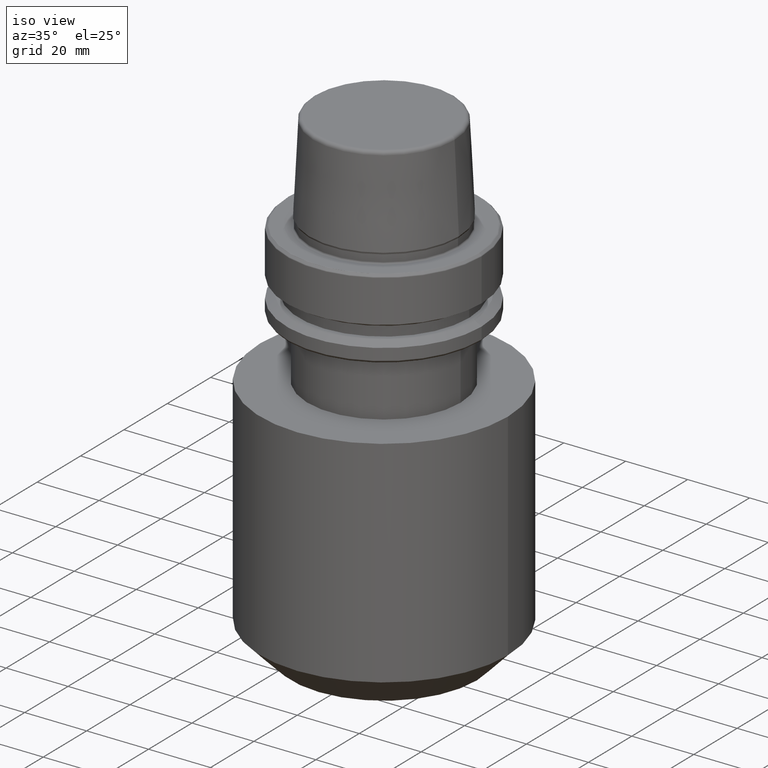
[diagram: clean part render]
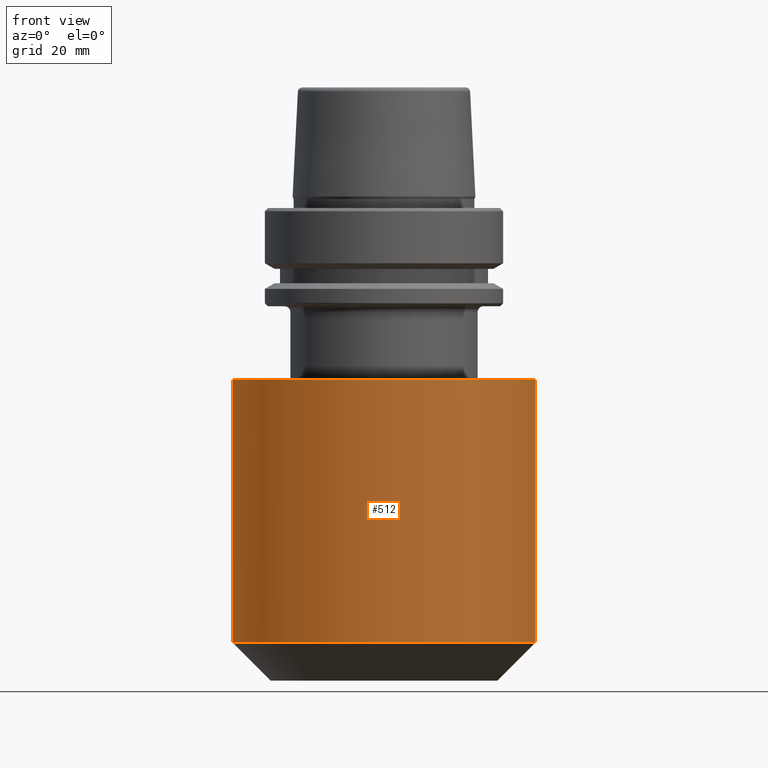
[diagram: tour spotlight — one face highlighted and labeled with its STEP entity id]
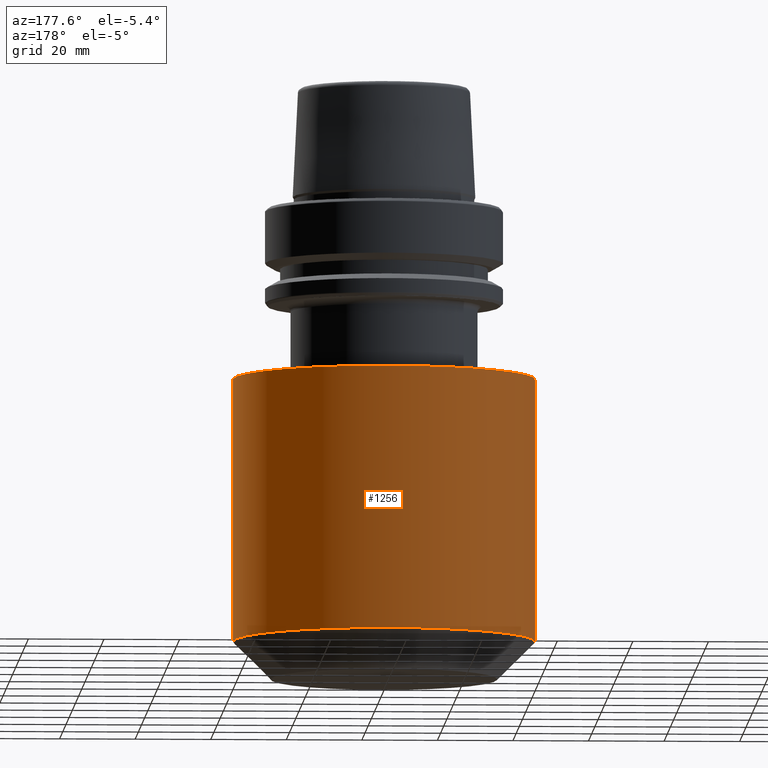
[diagram: tour spotlight — one face highlighted and labeled with its STEP entity id]
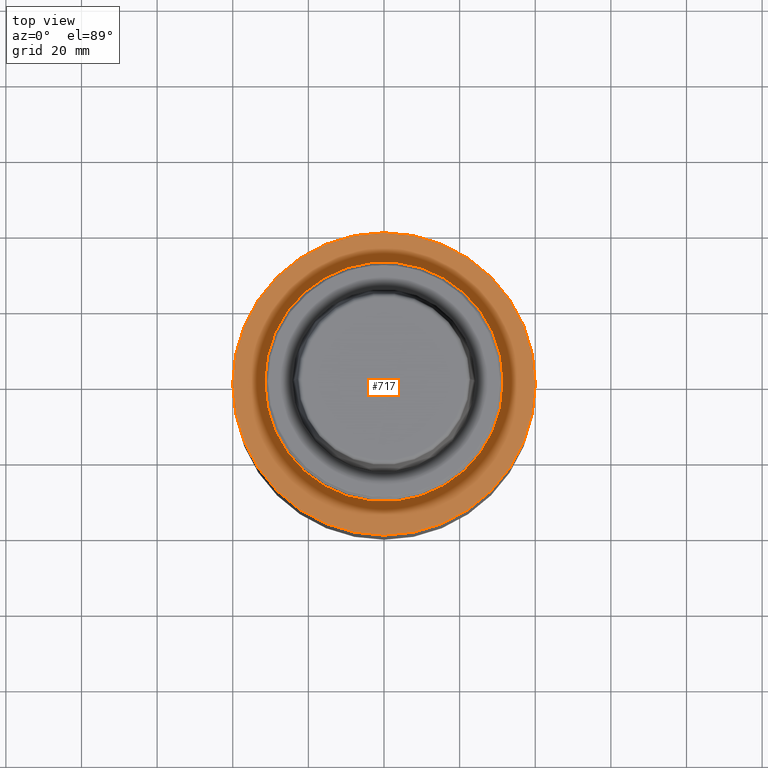
[diagram: tour spotlight — one face highlighted and labeled with its STEP entity id]
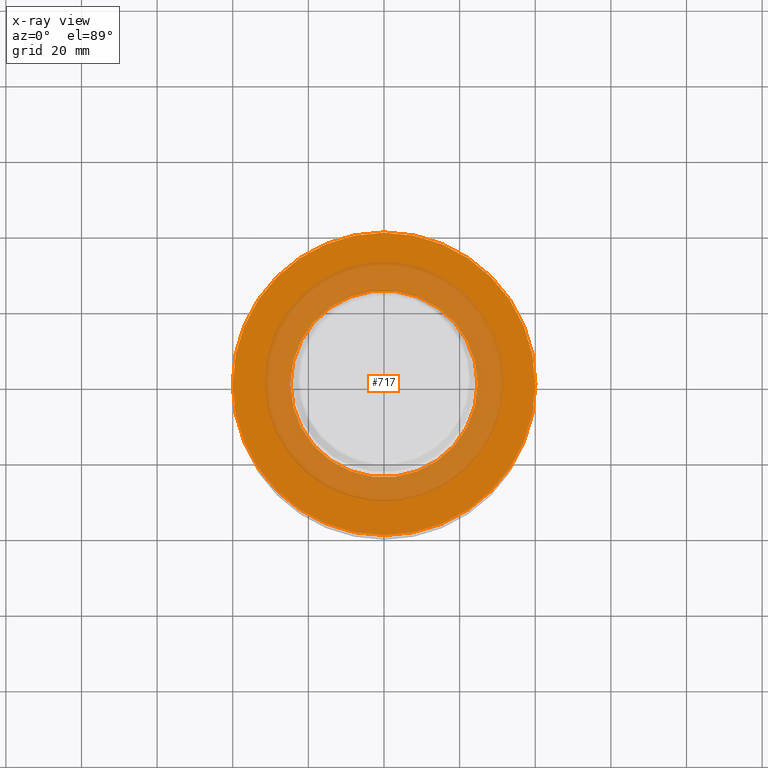
[diagram: x-ray of the same camera — body ghosted, this tour face saturated]
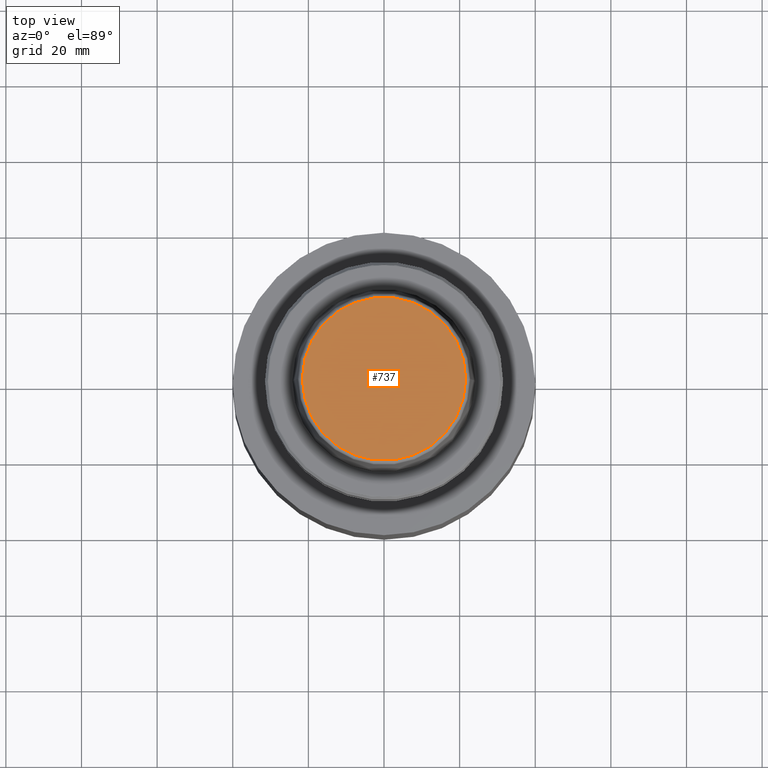
[diagram: tour spotlight — one face highlighted and labeled with its STEP entity id]
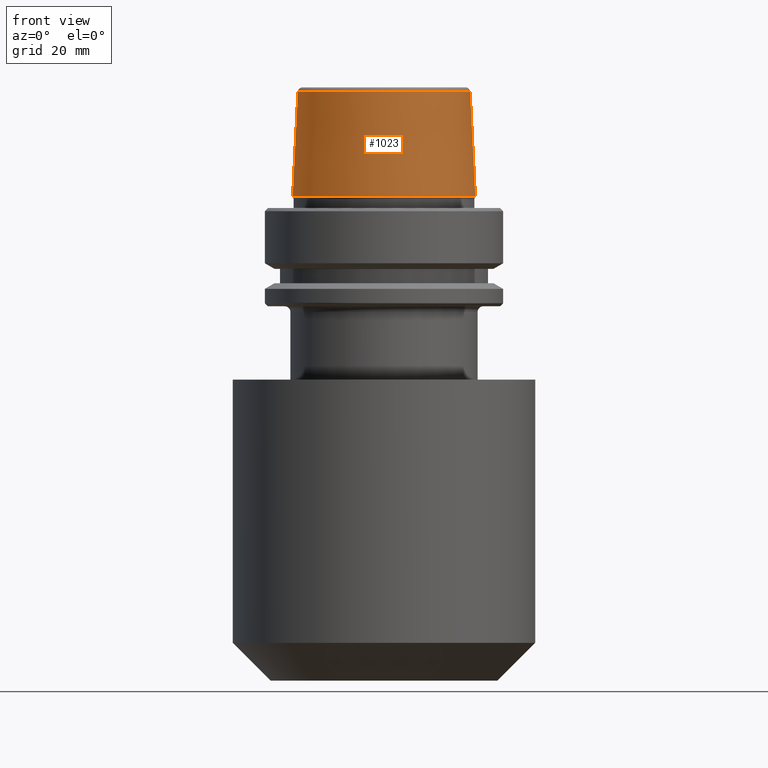
[diagram: tour spotlight — one face highlighted and labeled with its STEP entity id]
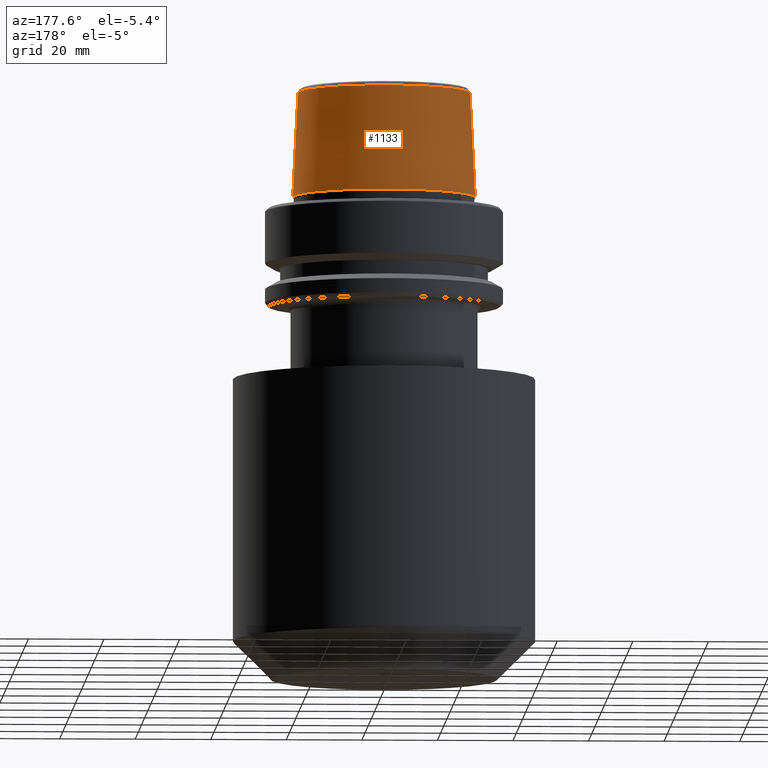
[diagram: tour spotlight — one face highlighted and labeled with its STEP entity id]
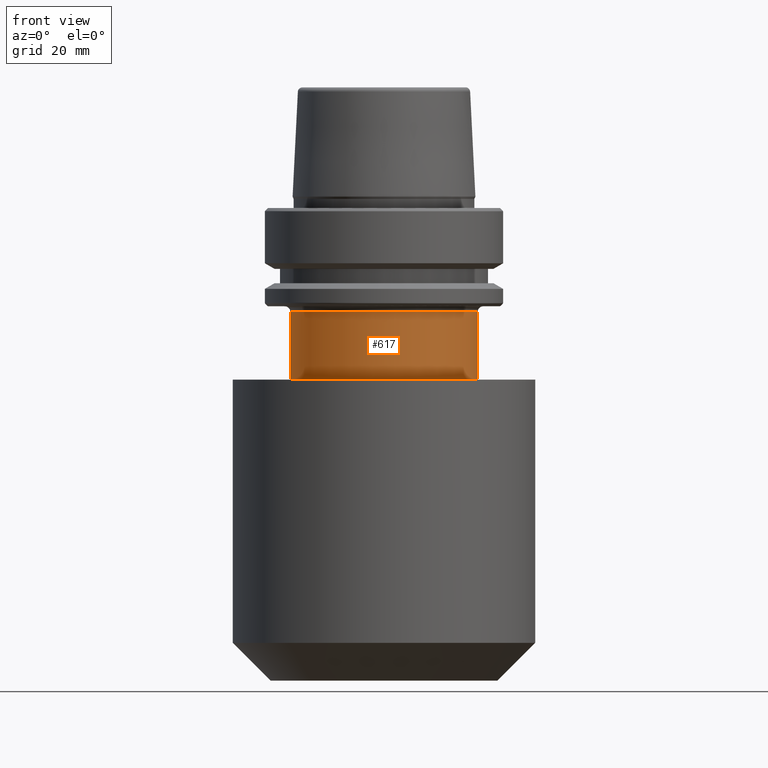
[diagram: tour spotlight — one face highlighted and labeled with its STEP entity id]
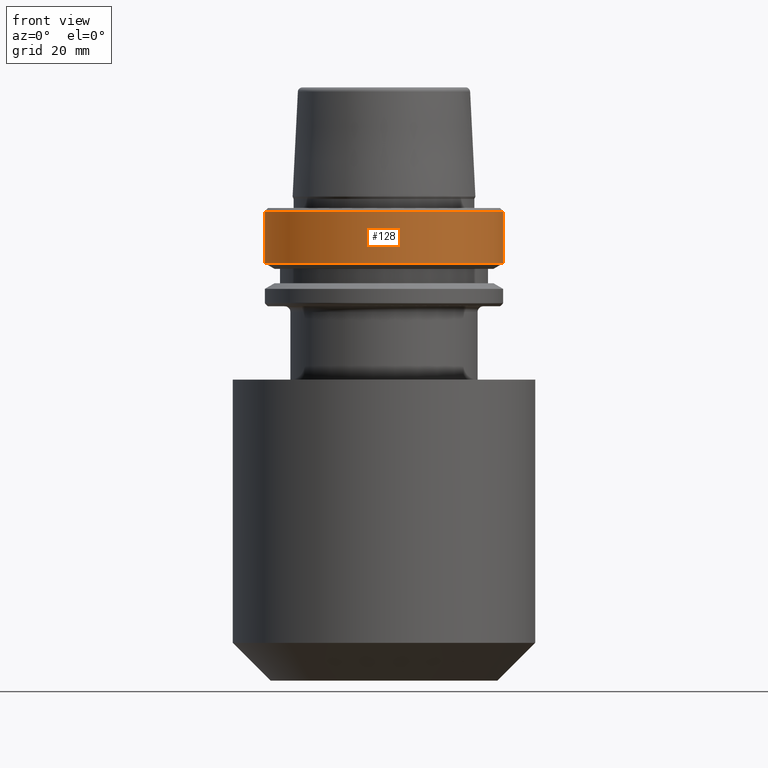
[diagram: tour spotlight — one face highlighted and labeled with its STEP entity id]
A machine part: a face-by-face anatomy tour. The part has 49 B-rep faces; the first image is the clean iso view, then the 8 largest visible faces are spotlighted one at a time (largest first), each with its STEP entity span.

Face 1 — front view, entity #512. In plain terms, the highlighted cylindrical surface (partial cylindrical patch) has radius 40 mm, axis along (-0, -0, 1).
Definition (entity closure, byte-faithful):
#27 = CARTESIAN_POINT ( 'NONE',  ( 0.0000000000000000000, 0.0000000000000000000, -115.0000000000001000 ) ) ;
#38 = CARTESIAN_POINT ( 'NONE',  ( 40.00000000000000000, 0.0000000000000000000, -115.0000000000001000 ) ) ;
#44 = AXIS2_PLACEMENT_3D ( 'NONE', #1097, #1319, #945 ) ;
#68 = DIRECTION ( 'NONE',  ( -0.0000000000000000000, -0.0000000000000000000, 1.000000000000000000 ) ) ;
#105 = DIRECTION ( 'NONE',  ( -0.0000000000000000000, -0.0000000000000000000, 1.000000000000000000 ) ) ;
#108 = VERTEX_POINT ( 'NONE', #1183 ) ;
#118 = DIRECTION ( 'NONE',  ( 1.000000000000000000, 0.0000000000000000000, 0.0000000000000000000 ) ) ;
#119 = EDGE_CURVE ( 'NONE', #965, #871, #1214, .T. ) ;
#251 = ORIENTED_EDGE ( 'NONE', *, *, #537, .T. ) ;
#302 = CARTESIAN_POINT ( 'NONE',  ( -40.00000000000000000, 4.898587196589413000E-015, -45.38284271247462700 ) ) ;
#335 = FACE_OUTER_BOUND ( 'NONE', #510, .T. ) ;
#382 = LINE ( 'NONE', #1326, #1323 ) ;
#391 = CARTESIAN_POINT ( 'NONE',  ( 40.00000000000000000, 0.0000000000000000000, -45.38284271247462700 ) ) ;
#477 = CYLINDRICAL_SURFACE ( 'NONE', #1084, 40.00000000000000000 ) ;
#509 = VECTOR ( 'NONE', #68, 1000.000000000000000 ) ;
#510 = EDGE_LOOP ( 'NONE', ( #520, #251, #904, #677 ) ) ;
#512 = ADVANCED_FACE ( 'NONE', ( #335 ), #477, .T. ) ;
#520 = ORIENTED_EDGE ( 'NONE', *, *, #630, .F. ) ;
#537 = EDGE_CURVE ( 'NONE', #108, #965, #627, .T. ) ;
#550 = CARTESIAN_POINT ( 'NONE',  ( 40.00000000000000000, 0.0000000000000000000, 31.31059451800105700 ) ) ;
#627 = CIRCLE ( 'NONE', #1066, 40.00000000000000000 ) ;
#630 = EDGE_CURVE ( 'NONE', #108, #1228, #382, .T. ) ;
#677 = ORIENTED_EDGE ( 'NONE', *, *, #1185, .F. ) ;
#739 = DIRECTION ( 'NONE',  ( 1.000000000000000000, 0.0000000000000000000, 0.0000000000000000000 ) ) ;
#871 = VERTEX_POINT ( 'NONE', #391 ) ;
#904 = ORIENTED_EDGE ( 'NONE', *, *, #119, .T. ) ;
#915 = CARTESIAN_POINT ( 'NONE',  ( 0.0000000000000000000, 0.0000000000000000000, 31.31059451800105700 ) ) ;
#929 = DIRECTION ( 'NONE',  ( -0.0000000000000000000, -0.0000000000000000000, 1.000000000000000000 ) ) ;
#945 = DIRECTION ( 'NONE',  ( 1.000000000000000000, 0.0000000000000000000, 0.0000000000000000000 ) ) ;
#947 = DIRECTION ( 'NONE',  ( -0.0000000000000000000, -0.0000000000000000000, 1.000000000000000000 ) ) ;
#965 = VERTEX_POINT ( 'NONE', #38 ) ;
#1057 = CIRCLE ( 'NONE', #44, 40.00000000000000000 ) ;
#1066 = AXIS2_PLACEMENT_3D ( 'NONE', #27, #947, #739 ) ;
#1084 = AXIS2_PLACEMENT_3D ( 'NONE', #915, #929, #118 ) ;
#1097 = CARTESIAN_POINT ( 'NONE',  ( 0.0000000000000000000, 0.0000000000000000000, -45.38284271247462700 ) ) ;
#1183 = CARTESIAN_POINT ( 'NONE',  ( -40.00000000000000000, 4.898587196589413000E-015, -115.0000000000001000 ) ) ;
#1185 = EDGE_CURVE ( 'NONE', #1228, #871, #1057, .T. ) ;
#1214 = LINE ( 'NONE', #550, #509 ) ;
#1228 = VERTEX_POINT ( 'NONE', #302 ) ;
#1319 = DIRECTION ( 'NONE',  ( -0.0000000000000000000, -0.0000000000000000000, 1.000000000000000000 ) ) ;
#1323 = VECTOR ( 'NONE', #105, 1000.000000000000000 ) ;
#1326 = CARTESIAN_POINT ( 'NONE',  ( -40.00000000000000000, 4.898587196589413000E-015, 31.31059451800105700 ) ) ;

Face 2 — auxiliary view, entity #1256. In plain terms, the highlighted cylindrical surface (partial cylindrical patch) has radius 40 mm, axis along (-0, -0, 1).
Definition (entity closure, byte-faithful):
#8 = DIRECTION ( 'NONE',  ( 1.000000000000000000, 0.0000000000000000000, 0.0000000000000000000 ) ) ;
#38 = CARTESIAN_POINT ( 'NONE',  ( 40.00000000000000000, 0.0000000000000000000, -115.0000000000001000 ) ) ;
#39 = ORIENTED_EDGE ( 'NONE', *, *, #822, .F. ) ;
#68 = DIRECTION ( 'NONE',  ( -0.0000000000000000000, -0.0000000000000000000, 1.000000000000000000 ) ) ;
#70 = CIRCLE ( 'NONE', #674, 40.00000000000000000 ) ;
#80 = CARTESIAN_POINT ( 'NONE',  ( 0.0000000000000000000, 0.0000000000000000000, 31.31059451800105700 ) ) ;
#82 = CYLINDRICAL_SURFACE ( 'NONE', #1253, 40.00000000000000000 ) ;
#105 = DIRECTION ( 'NONE',  ( -0.0000000000000000000, -0.0000000000000000000, 1.000000000000000000 ) ) ;
#108 = VERTEX_POINT ( 'NONE', #1183 ) ;
#119 = EDGE_CURVE ( 'NONE', #965, #871, #1214, .T. ) ;
#163 = ORIENTED_EDGE ( 'NONE', *, *, #119, .F. ) ;
#284 = ORIENTED_EDGE ( 'NONE', *, *, #630, .T. ) ;
#297 = ORIENTED_EDGE ( 'NONE', *, *, #467, .T. ) ;
#302 = CARTESIAN_POINT ( 'NONE',  ( -40.00000000000000000, 4.898587196589413000E-015, -45.38284271247462700 ) ) ;
#318 = DIRECTION ( 'NONE',  ( 1.000000000000000000, 0.0000000000000000000, 0.0000000000000000000 ) ) ;
#382 = LINE ( 'NONE', #1326, #1323 ) ;
#391 = CARTESIAN_POINT ( 'NONE',  ( 40.00000000000000000, 0.0000000000000000000, -45.38284271247462700 ) ) ;
#467 = EDGE_CURVE ( 'NONE', #965, #108, #70, .T. ) ;
#485 = DIRECTION ( 'NONE',  ( 1.000000000000000000, 0.0000000000000000000, 0.0000000000000000000 ) ) ;
#491 = FACE_OUTER_BOUND ( 'NONE', #1024, .T. ) ;
#509 = VECTOR ( 'NONE', #68, 1000.000000000000000 ) ;
#526 = DIRECTION ( 'NONE',  ( -0.0000000000000000000, -0.0000000000000000000, 1.000000000000000000 ) ) ;
#550 = CARTESIAN_POINT ( 'NONE',  ( 40.00000000000000000, 0.0000000000000000000, 31.31059451800105700 ) ) ;
#630 = EDGE_CURVE ( 'NONE', #108, #1228, #382, .T. ) ;
#674 = AXIS2_PLACEMENT_3D ( 'NONE', #1216, #713, #485 ) ;
#713 = DIRECTION ( 'NONE',  ( -0.0000000000000000000, -0.0000000000000000000, 1.000000000000000000 ) ) ;
#796 = CIRCLE ( 'NONE', #1069, 40.00000000000000000 ) ;
#822 = EDGE_CURVE ( 'NONE', #871, #1228, #796, .T. ) ;
#871 = VERTEX_POINT ( 'NONE', #391 ) ;
#965 = VERTEX_POINT ( 'NONE', #38 ) ;
#971 = DIRECTION ( 'NONE',  ( -0.0000000000000000000, -0.0000000000000000000, 1.000000000000000000 ) ) ;
#1024 = EDGE_LOOP ( 'NONE', ( #297, #284, #39, #163 ) ) ;
#1069 = AXIS2_PLACEMENT_3D ( 'NONE', #1263, #526, #318 ) ;
#1183 = CARTESIAN_POINT ( 'NONE',  ( -40.00000000000000000, 4.898587196589413000E-015, -115.0000000000001000 ) ) ;
#1214 = LINE ( 'NONE', #550, #509 ) ;
#1216 = CARTESIAN_POINT ( 'NONE',  ( 0.0000000000000000000, 0.0000000000000000000, -115.0000000000001000 ) ) ;
#1228 = VERTEX_POINT ( 'NONE', #302 ) ;
#1253 = AXIS2_PLACEMENT_3D ( 'NONE', #80, #971, #8 ) ;
#1256 = ADVANCED_FACE ( 'NONE', ( #491 ), #82, .T. ) ;
#1263 = CARTESIAN_POINT ( 'NONE',  ( 0.0000000000000000000, 0.0000000000000000000, -45.38284271247462700 ) ) ;
#1323 = VECTOR ( 'NONE', #105, 1000.000000000000000 ) ;
#1326 = CARTESIAN_POINT ( 'NONE',  ( -40.00000000000000000, 4.898587196589413000E-015, 31.31059451800105700 ) ) ;

Face 3 — top view, entity #717. An x-ray twin of the same camera follows (body ghosted, this face saturated) — the face is partly hidden behind the body. In plain terms, the highlighted planar face has unit normal (0, 0, -1).
Definition (entity closure, byte-faithful):
#1 = FACE_BOUND ( 'NONE', #151, .T. ) ;
#25 = EDGE_CURVE ( 'NONE', #752, #33, #588, .T. ) ;
#33 = VERTEX_POINT ( 'NONE', #864 ) ;
#44 = AXIS2_PLACEMENT_3D ( 'NONE', #1097, #1319, #945 ) ;
#101 = EDGE_LOOP ( 'NONE', ( #472, #768 ) ) ;
#151 = EDGE_LOOP ( 'NONE', ( #1047, #484 ) ) ;
#176 = CARTESIAN_POINT ( 'NONE',  ( 24.75000000000000000, 0.0000000000000000000, -45.38284271247462700 ) ) ;
#302 = CARTESIAN_POINT ( 'NONE',  ( -40.00000000000000000, 4.898587196589413000E-015, -45.38284271247462700 ) ) ;
#318 = DIRECTION ( 'NONE',  ( 1.000000000000000000, 0.0000000000000000000, 0.0000000000000000000 ) ) ;
#391 = CARTESIAN_POINT ( 'NONE',  ( 40.00000000000000000, 0.0000000000000000000, -45.38284271247462700 ) ) ;
#400 = DIRECTION ( 'NONE',  ( -0.0000000000000000000, -0.0000000000000000000, 1.000000000000000000 ) ) ;
#452 = DIRECTION ( 'NONE',  ( -0.0000000000000000000, -0.0000000000000000000, 1.000000000000000000 ) ) ;
#472 = ORIENTED_EDGE ( 'NONE', *, *, #822, .T. ) ;
#484 = ORIENTED_EDGE ( 'NONE', *, *, #549, .F. ) ;
#524 = CARTESIAN_POINT ( 'NONE',  ( 0.0000000000000000000, 0.0000000000000000000, -45.38284271247462700 ) ) ;
#526 = DIRECTION ( 'NONE',  ( -0.0000000000000000000, -0.0000000000000000000, 1.000000000000000000 ) ) ;
#549 = EDGE_CURVE ( 'NONE', #33, #752, #663, .T. ) ;
#588 = CIRCLE ( 'NONE', #1021, 24.75000000000000000 ) ;
#663 = CIRCLE ( 'NONE', #1138, 24.75000000000000000 ) ;
#717 = ADVANCED_FACE ( 'NONE', ( #1, #797 ), #817, .F. ) ;
#747 = DIRECTION ( 'NONE',  ( 0.0000000000000000000, 0.0000000000000000000, -1.000000000000000000 ) ) ;
#752 = VERTEX_POINT ( 'NONE', #176 ) ;
#768 = ORIENTED_EDGE ( 'NONE', *, *, #1185, .T. ) ;
#796 = CIRCLE ( 'NONE', #1069, 40.00000000000000000 ) ;
#797 = FACE_OUTER_BOUND ( 'NONE', #101, .T. ) ;
#808 = DIRECTION ( 'NONE',  ( -1.000000000000000000, 0.0000000000000000000, -0.0000000000000000000 ) ) ;
#817 = PLANE ( 'NONE',  #885 ) ;
#822 = EDGE_CURVE ( 'NONE', #871, #1228, #796, .T. ) ;
#864 = CARTESIAN_POINT ( 'NONE',  ( -24.75000000000000000, 3.031000827889699300E-015, -45.38284271247462700 ) ) ;
#871 = VERTEX_POINT ( 'NONE', #391 ) ;
#885 = AXIS2_PLACEMENT_3D ( 'NONE', #1327, #747, #808 ) ;
#945 = DIRECTION ( 'NONE',  ( 1.000000000000000000, 0.0000000000000000000, 0.0000000000000000000 ) ) ;
#1021 = AXIS2_PLACEMENT_3D ( 'NONE', #1176, #452, #1287 ) ;
#1038 = DIRECTION ( 'NONE',  ( 1.000000000000000000, 0.0000000000000000000, 0.0000000000000000000 ) ) ;
#1047 = ORIENTED_EDGE ( 'NONE', *, *, #25, .F. ) ;
#1057 = CIRCLE ( 'NONE', #44, 40.00000000000000000 ) ;
#1069 = AXIS2_PLACEMENT_3D ( 'NONE', #1263, #526, #318 ) ;
#1097 = CARTESIAN_POINT ( 'NONE',  ( 0.0000000000000000000, 0.0000000000000000000, -45.38284271247462700 ) ) ;
#1138 = AXIS2_PLACEMENT_3D ( 'NONE', #524, #400, #1038 ) ;
#1176 = CARTESIAN_POINT ( 'NONE',  ( 0.0000000000000000000, 0.0000000000000000000, -45.38284271247462700 ) ) ;
#1185 = EDGE_CURVE ( 'NONE', #1228, #871, #1057, .T. ) ;
#1228 = VERTEX_POINT ( 'NONE', #302 ) ;
#1263 = CARTESIAN_POINT ( 'NONE',  ( 0.0000000000000000000, 0.0000000000000000000, -45.38284271247462700 ) ) ;
#1287 = DIRECTION ( 'NONE',  ( 1.000000000000000000, 0.0000000000000000000, 0.0000000000000000000 ) ) ;
#1319 = DIRECTION ( 'NONE',  ( -0.0000000000000000000, -0.0000000000000000000, 1.000000000000000000 ) ) ;
#1327 = CARTESIAN_POINT ( 'NONE',  ( 0.0000000000000000000, 24.75000000000000000, -45.38284271247462700 ) ) ;

Face 4 — top view, entity #737. In plain terms, the highlighted planar face has unit normal (0, 0, -1).
Definition (entity closure, byte-faithful):
#9 = AXIS2_PLACEMENT_3D ( 'NONE', #833, #639, #117 ) ;
#26 = AXIS2_PLACEMENT_3D ( 'NONE', #759, #1103, #698 ) ;
#50 = CIRCLE ( 'NONE', #9, 21.58108272732117100 ) ;
#64 = EDGE_LOOP ( 'NONE', ( #459, #86 ) ) ;
#86 = ORIENTED_EDGE ( 'NONE', *, *, #1116, .T. ) ;
#117 = DIRECTION ( 'NONE',  ( 1.000000000000000000, 0.0000000000000000000, 0.0000000000000000000 ) ) ;
#125 = VERTEX_POINT ( 'NONE', #1100 ) ;
#188 = CARTESIAN_POINT ( 'NONE',  ( 21.58108272732117100, 0.0000000000000000000, 31.89999999999999900 ) ) ;
#208 = VERTEX_POINT ( 'NONE', #188 ) ;
#257 = DIRECTION ( 'NONE',  ( -0.0000000000000000000, -0.0000000000000000000, 1.000000000000000000 ) ) ;
#459 = ORIENTED_EDGE ( 'NONE', *, *, #1065, .T. ) ;
#533 = FACE_OUTER_BOUND ( 'NONE', #64, .T. ) ;
#545 = CARTESIAN_POINT ( 'NONE',  ( 0.0000000000000000000, 0.0000000000000000000, 31.89999999999999900 ) ) ;
#581 = PLANE ( 'NONE',  #26 ) ;
#639 = DIRECTION ( 'NONE',  ( -0.0000000000000000000, -0.0000000000000000000, 1.000000000000000000 ) ) ;
#698 = DIRECTION ( 'NONE',  ( -1.000000000000000000, 0.0000000000000000000, -0.0000000000000000000 ) ) ;
#737 = ADVANCED_FACE ( 'NONE', ( #533 ), #581, .F. ) ;
#759 = CARTESIAN_POINT ( 'NONE',  ( 0.0000000000000000000, -6.776263578034402700E-018, 31.89999999999999900 ) ) ;
#778 = DIRECTION ( 'NONE',  ( 1.000000000000000000, 0.0000000000000000000, 0.0000000000000000000 ) ) ;
#833 = CARTESIAN_POINT ( 'NONE',  ( 0.0000000000000000000, 0.0000000000000000000, 31.89999999999999900 ) ) ;
#951 = AXIS2_PLACEMENT_3D ( 'NONE', #545, #257, #778 ) ;
#1065 = EDGE_CURVE ( 'NONE', #208, #125, #1141, .T. ) ;
#1100 = CARTESIAN_POINT ( 'NONE',  ( -21.58108272732117100, 2.716307157494421400E-015, 31.89999999999999900 ) ) ;
#1103 = DIRECTION ( 'NONE',  ( 0.0000000000000000000, 0.0000000000000000000, -1.000000000000000000 ) ) ;
#1116 = EDGE_CURVE ( 'NONE', #125, #208, #50, .T. ) ;
#1141 = CIRCLE ( 'NONE', #951, 21.58108272732117100 ) ;

Face 5 — front view, entity #1023. In plain terms, the highlighted conical surface has half-angle 2.868 deg.
Definition (entity closure, byte-faithful):
#19 = CIRCLE ( 'NONE', #576, 24.17032625081241900 ) ;
#46 = EDGE_CURVE ( 'NONE', #319, #55, #19, .T. ) ;
#53 = DIRECTION ( 'NONE',  ( -0.05003611051310812000, 0.0000000000000000000, -0.9987474093306675200 ) ) ;
#55 = VERTEX_POINT ( 'NONE', #65 ) ;
#65 = CARTESIAN_POINT ( 'NONE',  ( 24.17032625081241900, 0.0000000000000000000, 3.000000000000002700 ) ) ;
#144 = CARTESIAN_POINT ( 'NONE',  ( -22.77957961851797100, 0.0000000000000000000, 30.76004333261571900 ) ) ;
#154 = CARTESIAN_POINT ( 'NONE',  ( -24.17032625081241900, 0.0000000000000000000, 3.000000000000002700 ) ) ;
#171 = DIRECTION ( 'NONE',  ( -0.0000000000000000000, -0.0000000000000000000, 1.000000000000000000 ) ) ;
#172 = EDGE_CURVE ( 'NONE', #394, #55, #307, .T. ) ;
#307 = LINE ( 'NONE', #323, #858 ) ;
#319 = VERTEX_POINT ( 'NONE', #819 ) ;
#323 = CARTESIAN_POINT ( 'NONE',  ( 24.17032625081241900, 2.960011267740467600E-015, 3.000000000000002700 ) ) ;
#371 = ORIENTED_EDGE ( 'NONE', *, *, #46, .T. ) ;
#394 = VERTEX_POINT ( 'NONE', #1094 ) ;
#547 = DIRECTION ( 'NONE',  ( -0.0000000000000000000, -0.0000000000000000000, 1.000000000000000000 ) ) ;
#576 = AXIS2_PLACEMENT_3D ( 'NONE', #1067, #171, #1298 ) ;
#591 = ORIENTED_EDGE ( 'NONE', *, *, #784, .F. ) ;
#688 = DIRECTION ( 'NONE',  ( 0.0000000000000000000, 0.0000000000000000000, -1.000000000000000000 ) ) ;
#749 = DIRECTION ( 'NONE',  ( 0.05003611051310812000, 6.127656258166108900E-018, -0.9987474093306675200 ) ) ;
#784 = EDGE_CURVE ( 'NONE', #1283, #394, #1148, .T. ) ;
#819 = CARTESIAN_POINT ( 'NONE',  ( -24.17032625081241900, 2.960011267740467600E-015, 3.000000000000002700 ) ) ;
#843 = VECTOR ( 'NONE', #53, 1000.000000000000200 ) ;
#846 = CARTESIAN_POINT ( 'NONE',  ( 0.0000000000000000000, 0.0000000000000000000, 3.000000000000002700 ) ) ;
#858 = VECTOR ( 'NONE', #749, 1000.000000000000200 ) ;
#896 = FACE_OUTER_BOUND ( 'NONE', #1215, .T. ) ;
#970 = ORIENTED_EDGE ( 'NONE', *, *, #172, .F. ) ;
#980 = CARTESIAN_POINT ( 'NONE',  ( 0.0000000000000000000, 0.0000000000000000000, 30.76004333261571900 ) ) ;
#1002 = AXIS2_PLACEMENT_3D ( 'NONE', #846, #688, #1238 ) ;
#1023 = ADVANCED_FACE ( 'NONE', ( #896 ), #1332, .T. ) ;
#1067 = CARTESIAN_POINT ( 'NONE',  ( 0.0000000000000000000, 0.0000000000000000000, 3.000000000000002700 ) ) ;
#1074 = DIRECTION ( 'NONE',  ( 1.000000000000000000, 0.0000000000000000000, 0.0000000000000000000 ) ) ;
#1089 = LINE ( 'NONE', #154, #843 ) ;
#1094 = CARTESIAN_POINT ( 'NONE',  ( 22.77957961851797100, 2.874852597157249900E-015, 30.76004333261571900 ) ) ;
#1147 = ORIENTED_EDGE ( 'NONE', *, *, #1237, .T. ) ;
#1148 = CIRCLE ( 'NONE', #1289, 22.77957961851797100 ) ;
#1215 = EDGE_LOOP ( 'NONE', ( #970, #591, #1147, #371 ) ) ;
#1237 = EDGE_CURVE ( 'NONE', #1283, #319, #1089, .T. ) ;
#1238 = DIRECTION ( 'NONE',  ( -1.000000000000000000, 0.0000000000000000000, 0.0000000000000000000 ) ) ;
#1283 = VERTEX_POINT ( 'NONE', #144 ) ;
#1289 = AXIS2_PLACEMENT_3D ( 'NONE', #980, #547, #1074 ) ;
#1298 = DIRECTION ( 'NONE',  ( 1.000000000000000000, 0.0000000000000000000, 0.0000000000000000000 ) ) ;
#1332 = CONICAL_SURFACE ( 'NONE', #1002, 24.17032625081241900, 0.05005701257456005000 ) ;

Face 6 — auxiliary view, entity #1133. In plain terms, the highlighted conical surface has half-angle 2.868 deg.
Definition (entity closure, byte-faithful):
#11 = EDGE_LOOP ( 'NONE', ( #979, #655, #731, #898 ) ) ;
#53 = DIRECTION ( 'NONE',  ( -0.05003611051310812000, 0.0000000000000000000, -0.9987474093306675200 ) ) ;
#55 = VERTEX_POINT ( 'NONE', #65 ) ;
#65 = CARTESIAN_POINT ( 'NONE',  ( 24.17032625081241900, 0.0000000000000000000, 3.000000000000002700 ) ) ;
#88 = AXIS2_PLACEMENT_3D ( 'NONE', #595, #403, #801 ) ;
#144 = CARTESIAN_POINT ( 'NONE',  ( -22.77957961851797100, 0.0000000000000000000, 30.76004333261571900 ) ) ;
#154 = CARTESIAN_POINT ( 'NONE',  ( -24.17032625081241900, 0.0000000000000000000, 3.000000000000002700 ) ) ;
#160 = DIRECTION ( 'NONE',  ( 1.000000000000000000, 0.0000000000000000000, 0.0000000000000000000 ) ) ;
#172 = EDGE_CURVE ( 'NONE', #394, #55, #307, .T. ) ;
#273 = CONICAL_SURFACE ( 'NONE', #88, 24.17032625081241900, 0.05005701257456005000 ) ;
#307 = LINE ( 'NONE', #323, #858 ) ;
#316 = CIRCLE ( 'NONE', #1053, 22.77957961851797100 ) ;
#319 = VERTEX_POINT ( 'NONE', #819 ) ;
#323 = CARTESIAN_POINT ( 'NONE',  ( 24.17032625081241900, 2.960011267740467600E-015, 3.000000000000002700 ) ) ;
#364 = CARTESIAN_POINT ( 'NONE',  ( 0.0000000000000000000, 0.0000000000000000000, 3.000000000000002700 ) ) ;
#394 = VERTEX_POINT ( 'NONE', #1094 ) ;
#403 = DIRECTION ( 'NONE',  ( 0.0000000000000000000, 0.0000000000000000000, -1.000000000000000000 ) ) ;
#418 = EDGE_CURVE ( 'NONE', #55, #319, #1030, .T. ) ;
#471 = DIRECTION ( 'NONE',  ( -0.0000000000000000000, -0.0000000000000000000, 1.000000000000000000 ) ) ;
#595 = CARTESIAN_POINT ( 'NONE',  ( 0.0000000000000000000, 0.0000000000000000000, 3.000000000000002700 ) ) ;
#645 = DIRECTION ( 'NONE',  ( -0.0000000000000000000, -0.0000000000000000000, 1.000000000000000000 ) ) ;
#648 = AXIS2_PLACEMENT_3D ( 'NONE', #364, #471, #1335 ) ;
#655 = ORIENTED_EDGE ( 'NONE', *, *, #172, .T. ) ;
#731 = ORIENTED_EDGE ( 'NONE', *, *, #418, .T. ) ;
#749 = DIRECTION ( 'NONE',  ( 0.05003611051310812000, 6.127656258166108900E-018, -0.9987474093306675200 ) ) ;
#801 = DIRECTION ( 'NONE',  ( -1.000000000000000000, 0.0000000000000000000, 0.0000000000000000000 ) ) ;
#819 = CARTESIAN_POINT ( 'NONE',  ( -24.17032625081241900, 2.960011267740467600E-015, 3.000000000000002700 ) ) ;
#843 = VECTOR ( 'NONE', #53, 1000.000000000000200 ) ;
#858 = VECTOR ( 'NONE', #749, 1000.000000000000200 ) ;
#898 = ORIENTED_EDGE ( 'NONE', *, *, #1237, .F. ) ;
#979 = ORIENTED_EDGE ( 'NONE', *, *, #1136, .F. ) ;
#1004 = CARTESIAN_POINT ( 'NONE',  ( 0.0000000000000000000, 0.0000000000000000000, 30.76004333261571900 ) ) ;
#1009 = FACE_OUTER_BOUND ( 'NONE', #11, .T. ) ;
#1030 = CIRCLE ( 'NONE', #648, 24.17032625081241900 ) ;
#1053 = AXIS2_PLACEMENT_3D ( 'NONE', #1004, #645, #160 ) ;
#1089 = LINE ( 'NONE', #154, #843 ) ;
#1094 = CARTESIAN_POINT ( 'NONE',  ( 22.77957961851797100, 2.874852597157249900E-015, 30.76004333261571900 ) ) ;
#1133 = ADVANCED_FACE ( 'NONE', ( #1009 ), #273, .T. ) ;
#1136 = EDGE_CURVE ( 'NONE', #394, #1283, #316, .T. ) ;
#1237 = EDGE_CURVE ( 'NONE', #1283, #319, #1089, .T. ) ;
#1283 = VERTEX_POINT ( 'NONE', #144 ) ;
#1335 = DIRECTION ( 'NONE',  ( 1.000000000000000000, 0.0000000000000000000, 0.0000000000000000000 ) ) ;

Face 7 — front view, entity #617. In plain terms, the highlighted cylindrical surface (partial cylindrical patch) has radius 24.75 mm, axis along (-0, -0, 1).
Definition (entity closure, byte-faithful):
#7 = CARTESIAN_POINT ( 'NONE',  ( 0.0000000000000000000, 0.0000000000000000000, 31.31059451800105700 ) ) ;
#33 = VERTEX_POINT ( 'NONE', #864 ) ;
#176 = CARTESIAN_POINT ( 'NONE',  ( 24.75000000000000000, 0.0000000000000000000, -45.38284271247462700 ) ) ;
#228 = ORIENTED_EDGE ( 'NONE', *, *, #365, .T. ) ;
#241 = VERTEX_POINT ( 'NONE', #755 ) ;
#303 = CARTESIAN_POINT ( 'NONE',  ( 0.0000000000000000000, 0.0000000000000000000, -27.50000000000001100 ) ) ;
#365 = EDGE_CURVE ( 'NONE', #752, #856, #1320, .T. ) ;
#386 = ORIENTED_EDGE ( 'NONE', *, *, #799, .T. ) ;
#400 = DIRECTION ( 'NONE',  ( -0.0000000000000000000, -0.0000000000000000000, 1.000000000000000000 ) ) ;
#417 = CYLINDRICAL_SURFACE ( 'NONE', #1306, 24.75000000000000000 ) ;
#436 = ORIENTED_EDGE ( 'NONE', *, *, #625, .F. ) ;
#506 = ORIENTED_EDGE ( 'NONE', *, *, #549, .T. ) ;
#524 = CARTESIAN_POINT ( 'NONE',  ( 0.0000000000000000000, 0.0000000000000000000, -45.38284271247462700 ) ) ;
#549 = EDGE_CURVE ( 'NONE', #33, #752, #663, .T. ) ;
#567 = DIRECTION ( 'NONE',  ( 0.0000000000000000000, 0.0000000000000000000, -1.000000000000000000 ) ) ;
#601 = CARTESIAN_POINT ( 'NONE',  ( -24.75000000000000000, 3.031000827889699300E-015, 31.31059451800105700 ) ) ;
#617 = ADVANCED_FACE ( 'NONE', ( #1107 ), #417, .T. ) ;
#625 = EDGE_CURVE ( 'NONE', #33, #241, #689, .T. ) ;
#632 = CARTESIAN_POINT ( 'NONE',  ( 24.75000000000000000, 0.0000000000000000000, 31.31059451800105700 ) ) ;
#663 = CIRCLE ( 'NONE', #1138, 24.75000000000000000 ) ;
#689 = LINE ( 'NONE', #601, #1063 ) ;
#716 = DIRECTION ( 'NONE',  ( -0.0000000000000000000, -0.0000000000000000000, 1.000000000000000000 ) ) ;
#752 = VERTEX_POINT ( 'NONE', #176 ) ;
#755 = CARTESIAN_POINT ( 'NONE',  ( -24.75000000000000000, 3.031000827889699300E-015, -27.50000000000001100 ) ) ;
#799 = EDGE_CURVE ( 'NONE', #856, #241, #862, .T. ) ;
#856 = VERTEX_POINT ( 'NONE', #1300 ) ;
#862 = CIRCLE ( 'NONE', #1140, 24.75000000000000000 ) ;
#864 = CARTESIAN_POINT ( 'NONE',  ( -24.75000000000000000, 3.031000827889699300E-015, -45.38284271247462700 ) ) ;
#922 = DIRECTION ( 'NONE',  ( 1.000000000000000000, 0.0000000000000000000, 0.0000000000000000000 ) ) ;
#1000 = EDGE_LOOP ( 'NONE', ( #436, #506, #228, #386 ) ) ;
#1038 = DIRECTION ( 'NONE',  ( 1.000000000000000000, 0.0000000000000000000, 0.0000000000000000000 ) ) ;
#1063 = VECTOR ( 'NONE', #1233, 1000.000000000000000 ) ;
#1070 = DIRECTION ( 'NONE',  ( -0.0000000000000000000, -0.0000000000000000000, 1.000000000000000000 ) ) ;
#1083 = DIRECTION ( 'NONE',  ( 1.000000000000000000, 0.0000000000000000000, 0.0000000000000000000 ) ) ;
#1107 = FACE_OUTER_BOUND ( 'NONE', #1000, .T. ) ;
#1129 = VECTOR ( 'NONE', #1070, 1000.000000000000000 ) ;
#1138 = AXIS2_PLACEMENT_3D ( 'NONE', #524, #400, #1038 ) ;
#1140 = AXIS2_PLACEMENT_3D ( 'NONE', #303, #567, #1083 ) ;
#1233 = DIRECTION ( 'NONE',  ( -0.0000000000000000000, -0.0000000000000000000, 1.000000000000000000 ) ) ;
#1300 = CARTESIAN_POINT ( 'NONE',  ( 24.75000000000000000, 0.0000000000000000000, -27.50000000000001100 ) ) ;
#1306 = AXIS2_PLACEMENT_3D ( 'NONE', #7, #716, #922 ) ;
#1320 = LINE ( 'NONE', #632, #1129 ) ;

Face 8 — front view, entity #128. In plain terms, the highlighted cylindrical surface (partial cylindrical patch) has radius 31.5 mm, axis along (-0, -0, 1).
Definition (entity closure, byte-faithful):
#69 = DIRECTION ( 'NONE',  ( -0.0000000000000000000, -0.0000000000000000000, 1.000000000000000000 ) ) ;
#103 = DIRECTION ( 'NONE',  ( 1.000000000000000000, 0.0000000000000000000, 0.0000000000000000000 ) ) ;
#128 = ADVANCED_FACE ( 'NONE', ( #1078 ), #900, .T. ) ;
#139 = ORIENTED_EDGE ( 'NONE', *, *, #207, .T. ) ;
#175 = CARTESIAN_POINT ( 'NONE',  ( 31.50000000000000000, 0.0000000000000000000, -14.62250092524070100 ) ) ;
#207 = EDGE_CURVE ( 'NONE', #1227, #548, #291, .T. ) ;
#236 = CARTESIAN_POINT ( 'NONE',  ( -31.50000000000000000, 3.857637417314162700E-015, 78.96908074195309300 ) ) ;
#253 = EDGE_CURVE ( 'NONE', #931, #1227, #792, .T. ) ;
#291 = LINE ( 'NONE', #993, #832 ) ;
#346 = EDGE_CURVE ( 'NONE', #427, #548, #751, .T. ) ;
#396 = DIRECTION ( 'NONE',  ( -0.0000000000000000000, -0.0000000000000000000, 1.000000000000000000 ) ) ;
#426 = CARTESIAN_POINT ( 'NONE',  ( 0.0000000000000000000, 0.0000000000000000000, -14.62250092524070100 ) ) ;
#427 = VERTEX_POINT ( 'NONE', #1221 ) ;
#462 = DIRECTION ( 'NONE',  ( -0.0000000000000000000, -0.0000000000000000000, 1.000000000000000000 ) ) ;
#548 = VERTEX_POINT ( 'NONE', #1062 ) ;
#608 = EDGE_CURVE ( 'NONE', #931, #427, #661, .T. ) ;
#650 = AXIS2_PLACEMENT_3D ( 'NONE', #1292, #69, #103 ) ;
#661 = LINE ( 'NONE', #236, #1028 ) ;
#695 = DIRECTION ( 'NONE',  ( -0.0000000000000000000, -0.0000000000000000000, 1.000000000000000000 ) ) ;
#751 = CIRCLE ( 'NONE', #1291, 31.50000000000000700 ) ;
#792 = CIRCLE ( 'NONE', #1102, 31.50000000000000000 ) ;
#832 = VECTOR ( 'NONE', #1249, 1000.000000000000000 ) ;
#888 = ORIENTED_EDGE ( 'NONE', *, *, #608, .F. ) ;
#900 = CYLINDRICAL_SURFACE ( 'NONE', #650, 31.50000000000000000 ) ;
#931 = VERTEX_POINT ( 'NONE', #1080 ) ;
#936 = DIRECTION ( 'NONE',  ( 1.000000000000000000, 0.0000000000000000000, 0.0000000000000000000 ) ) ;
#993 = CARTESIAN_POINT ( 'NONE',  ( 31.50000000000000000, 0.0000000000000000000, 78.96908074195309300 ) ) ;
#1015 = ORIENTED_EDGE ( 'NONE', *, *, #253, .T. ) ;
#1028 = VECTOR ( 'NONE', #396, 1000.000000000000000 ) ;
#1062 = CARTESIAN_POINT ( 'NONE',  ( 31.50000000000000700, 0.0000000000000000000, -0.9656854249492363700 ) ) ;
#1078 = FACE_OUTER_BOUND ( 'NONE', #1200, .T. ) ;
#1080 = CARTESIAN_POINT ( 'NONE',  ( -31.50000000000000000, 3.857637417314162700E-015, -14.62250092524070100 ) ) ;
#1102 = AXIS2_PLACEMENT_3D ( 'NONE', #426, #695, #936 ) ;
#1119 = DIRECTION ( 'NONE',  ( 1.000000000000000000, 0.0000000000000000000, 0.0000000000000000000 ) ) ;
#1186 = CARTESIAN_POINT ( 'NONE',  ( 0.0000000000000000000, 0.0000000000000000000, -0.9656854249492363700 ) ) ;
#1198 = ORIENTED_EDGE ( 'NONE', *, *, #346, .F. ) ;
#1200 = EDGE_LOOP ( 'NONE', ( #888, #1015, #139, #1198 ) ) ;
#1221 = CARTESIAN_POINT ( 'NONE',  ( -31.50000000000000700, 3.857637417314163500E-015, -0.9656854249492363700 ) ) ;
#1227 = VERTEX_POINT ( 'NONE', #175 ) ;
#1249 = DIRECTION ( 'NONE',  ( -0.0000000000000000000, -0.0000000000000000000, 1.000000000000000000 ) ) ;
#1291 = AXIS2_PLACEMENT_3D ( 'NONE', #1186, #462, #1119 ) ;
#1292 = CARTESIAN_POINT ( 'NONE',  ( 0.0000000000000000000, 0.0000000000000000000, 78.96908074195309300 ) ) ;